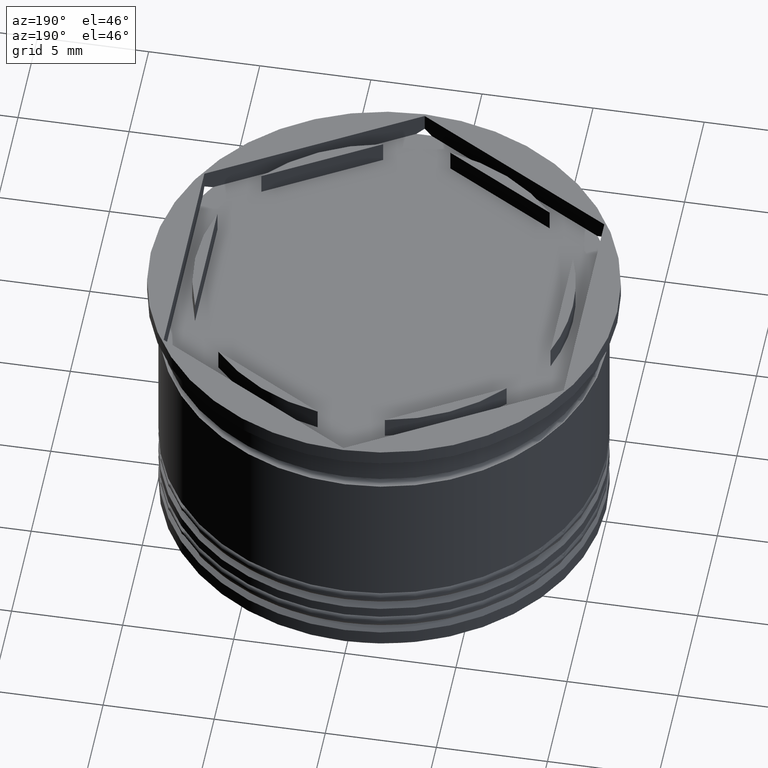
[diagram: clean part render]
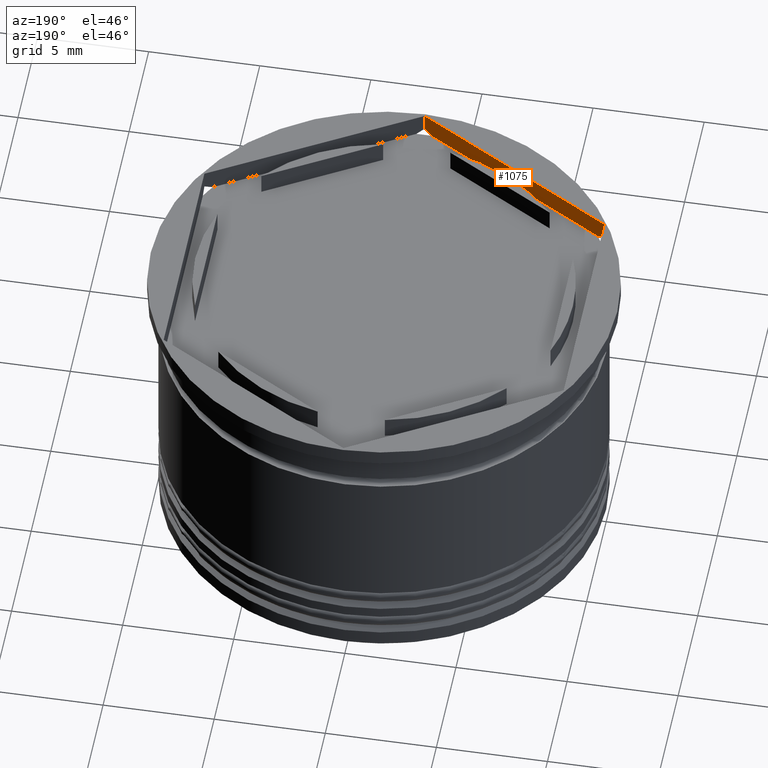
[diagram: same view with one face highlighted and labeled with its STEP entity id]
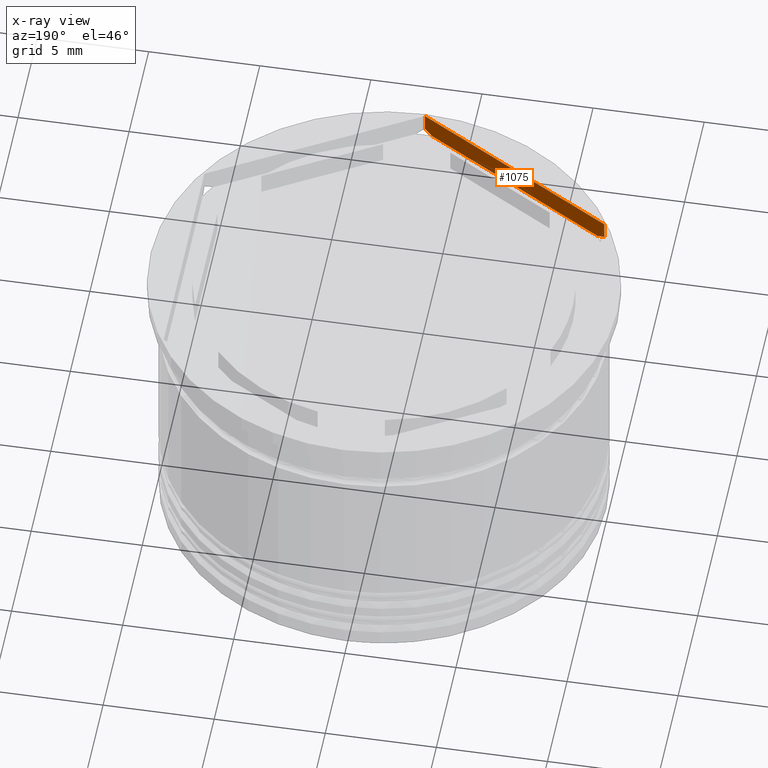
[diagram: x-ray of the same camera — body ghosted, the highlighted face saturated]
A machine part, auxiliary view. The second image highlights one B-rep face of the part: STEP entity #1075.
The next image is the same camera in x-ray: the body ghosted, the highlighted face saturated — about 0% of this face is hidden behind the body in this view.
In plain terms, the highlighted planar face has unit normal (-0.5, -0.866, 0).
Its self-contained STEP definition (entity closure, byte-faithful):
#13 = VERTEX_POINT ( 'NONE', #1311 ) ;
#33 = LINE ( 'NONE', #700, #83 ) ;
#83 = VECTOR ( 'NONE', #1686, 1000.000000000000000 ) ;
#89 = CARTESIAN_POINT ( 'NONE',  ( -8.772101384163734750, -5.327729749907644141, -0.9374128149154696832 ) ) ;
#90 = CARTESIAN_POINT ( 'NONE',  ( -0.3430780618347059052, -10.19422863405994129, -1.000000000000000000 ) ) ;
#107 = CARTESIAN_POINT ( 'NONE',  ( -9.000000000000003553, -5.196152422706632912, -1.000000000000000000 ) ) ;
#144 = EDGE_CURVE ( 'NONE', #2145, #1473, #360, .T. ) ;
#255 = CARTESIAN_POINT ( 'NONE',  ( -8.656921938165293540, -5.394228634059956562, -1.000000000000000000 ) ) ;
#264 = AXIS2_PLACEMENT_3D ( 'NONE', #357, #1195, #690 ) ;
#292 = CARTESIAN_POINT ( 'NONE',  ( -9.000000000000003553, -5.196152422706632912, -0.8076951545867272486 ) ) ;
#331 = ORIENTED_EDGE ( 'NONE', *, *, #144, .T. ) ;
#354 = EDGE_LOOP ( 'NONE', ( #1197, #1241, #331, #519, #701, #1004 ) ) ;
#357 = CARTESIAN_POINT ( 'NONE',  ( -9.000000000000003553, -5.196152422706632912, -1.000000000000000000 ) ) ;
#360 = B_SPLINE_CURVE_WITH_KNOTS ( 'NONE', 3,
 ( #255, #89, #793, #1622 ),
 .UNSPECIFIED., .F., .F.,
 ( 4, 4 ),
 ( 0.01913095655797705796, 0.01957275054198196959 ),
 .UNSPECIFIED. ) ;
#403 = VECTOR ( 'NONE', #763, 1000.000000000000000 ) ;
#442 = DIRECTION ( 'NONE',  ( 0.8660254037844387076, -0.4999999999999999445, 0.000000000000000000 ) ) ;
#452 = CARTESIAN_POINT ( 'NONE',  ( -0.1137795803948791346, -10.32661417404399984, -0.8733858259559953430 ) ) ;
#469 = LINE ( 'NONE', #107, #1031 ) ;
#519 = ORIENTED_EDGE ( 'NONE', *, *, #992, .T. ) ;
#647 = CARTESIAN_POINT ( 'NONE',  ( -8.656921938165293540, -5.394228634059956562, -1.000000000000000000 ) ) ;
#690 = DIRECTION ( 'NONE',  ( 0.8660254037844387076, -0.4999999999999998890, 0.000000000000000000 ) ) ;
#700 = CARTESIAN_POINT ( 'NONE',  ( 8.334195073742550113E-16, -10.39230484541326582, -1.000000000000000000 ) ) ;
#701 = ORIENTED_EDGE ( 'NONE', *, *, #1767, .T. ) ;
#721 = B_SPLINE_CURVE_WITH_KNOTS ( 'NONE', 3,
 ( #2117, #452, #933, #90 ),
 .UNSPECIFIED., .F., .F.,
 ( 4, 4 ),
 ( 0.008732135737192486119, 0.009172198939935490014 ),
 .UNSPECIFIED. ) ;
#763 = DIRECTION ( 'NONE',  ( 0.8660254037844387076, -0.4999999999999999445, 0.000000000000000000 ) ) ;
#793 = CARTESIAN_POINT ( 'NONE',  ( -8.886434285328355998, -5.261719618643019736, -0.8732623505231976724 ) ) ;
#797 = LINE ( 'NONE', #1762, #1870 ) ;
#802 = DIRECTION ( 'NONE',  ( -0.000000000000000000, -0.000000000000000000, 1.000000000000000000 ) ) ;
#849 = EDGE_CURVE ( 'NONE', #13, #2055, #721, .T. ) ;
#933 = CARTESIAN_POINT ( 'NONE',  ( -0.2281218951985654608, -10.26059860781232480, -0.9375341423506967642 ) ) ;
#937 = CARTESIAN_POINT ( 'NONE',  ( 8.334195073742550113E-16, -10.39230484541326582, 0.000000000000000000 ) ) ;
#992 = EDGE_CURVE ( 'NONE', #1473, #2142, #469, .T. ) ;
#1004 = ORIENTED_EDGE ( 'NONE', *, *, #1146, .F. ) ;
#1031 = VECTOR ( 'NONE', #802, 1000.000000000000000 ) ;
#1075 = ADVANCED_FACE ( 'NONE', ( #1696 ), #1821, .F. ) ;
#1146 = EDGE_CURVE ( 'NONE', #13, #1359, #33, .T. ) ;
#1195 = DIRECTION ( 'NONE',  ( -0.4999999999999998890, -0.8660254037844387076, 0.000000000000000000 ) ) ;
#1197 = ORIENTED_EDGE ( 'NONE', *, *, #849, .T. ) ;
#1241 = ORIENTED_EDGE ( 'NONE', *, *, #1958, .F. ) ;
#1311 = CARTESIAN_POINT ( 'NONE',  ( 8.334195073742550113E-16, -10.39230484541326582, -0.8076951545867279147 ) ) ;
#1359 = VERTEX_POINT ( 'NONE', #937 ) ;
#1411 = CARTESIAN_POINT ( 'NONE',  ( -0.3430780618347059052, -10.19422863405994129, -1.000000000000000000 ) ) ;
#1473 = VERTEX_POINT ( 'NONE', #292 ) ;
#1622 = CARTESIAN_POINT ( 'NONE',  ( -9.000000000000003553, -5.196152422706632912, -0.8076951545867272486 ) ) ;
#1686 = DIRECTION ( 'NONE',  ( -0.000000000000000000, -0.000000000000000000, 1.000000000000000000 ) ) ;
#1696 = FACE_OUTER_BOUND ( 'NONE', #354, .T. ) ;
#1762 = CARTESIAN_POINT ( 'NONE',  ( -9.000000000000003553, -5.196152422706632912, 0.000000000000000000 ) ) ;
#1767 = EDGE_CURVE ( 'NONE', #2142, #1359, #797, .T. ) ;
#1805 = CARTESIAN_POINT ( 'NONE',  ( -9.000000000000003553, -5.196152422706632912, 0.000000000000000000 ) ) ;
#1821 = PLANE ( 'NONE',  #264 ) ;
#1870 = VECTOR ( 'NONE', #442, 1000.000000000000000 ) ;
#1888 = LINE ( 'NONE', #1901, #403 ) ;
#1901 = CARTESIAN_POINT ( 'NONE',  ( -9.000000000000003553, -5.196152422706632912, -1.000000000000000000 ) ) ;
#1958 = EDGE_CURVE ( 'NONE', #2145, #2055, #1888, .T. ) ;
#2055 = VERTEX_POINT ( 'NONE', #1411 ) ;
#2117 = CARTESIAN_POINT ( 'NONE',  ( 8.334195073742550113E-16, -10.39230484541326582, -0.8076951545867279147 ) ) ;
#2142 = VERTEX_POINT ( 'NONE', #1805 ) ;
#2145 = VERTEX_POINT ( 'NONE', #647 ) ;